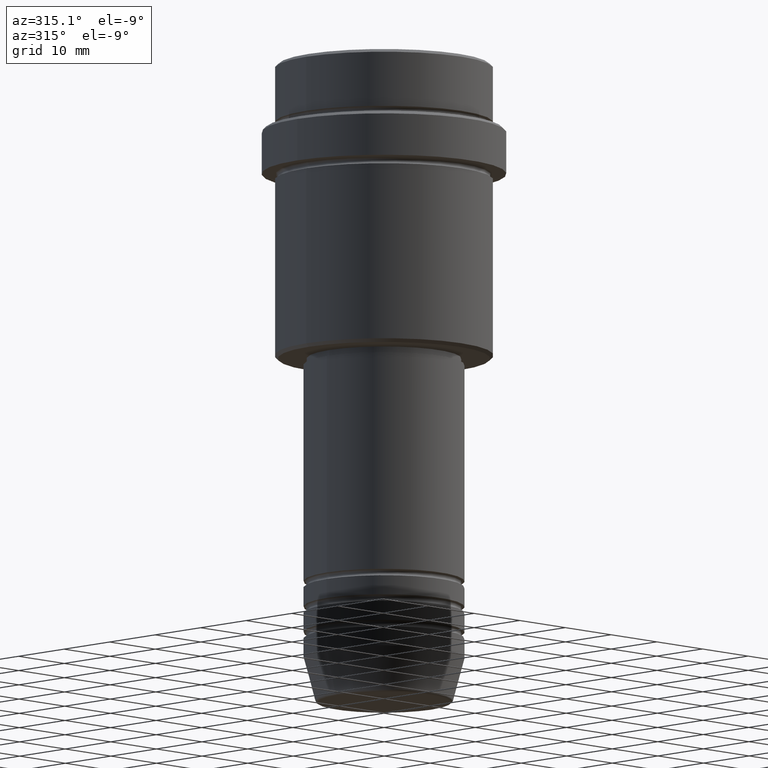
[diagram: clean part render]
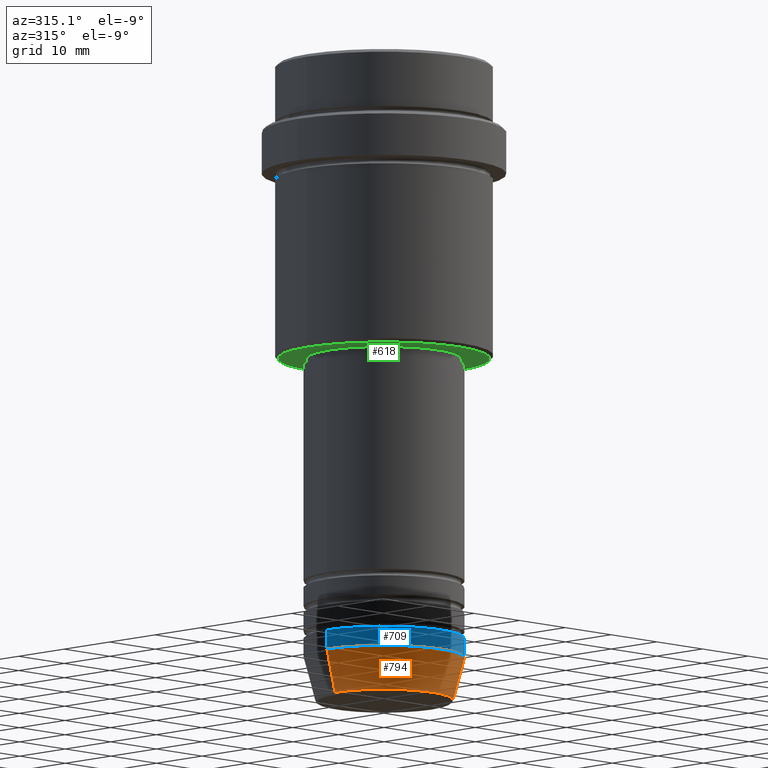
[diagram: same view with three faces highlighted in distinct colors, each labeled with its STEP entity id]
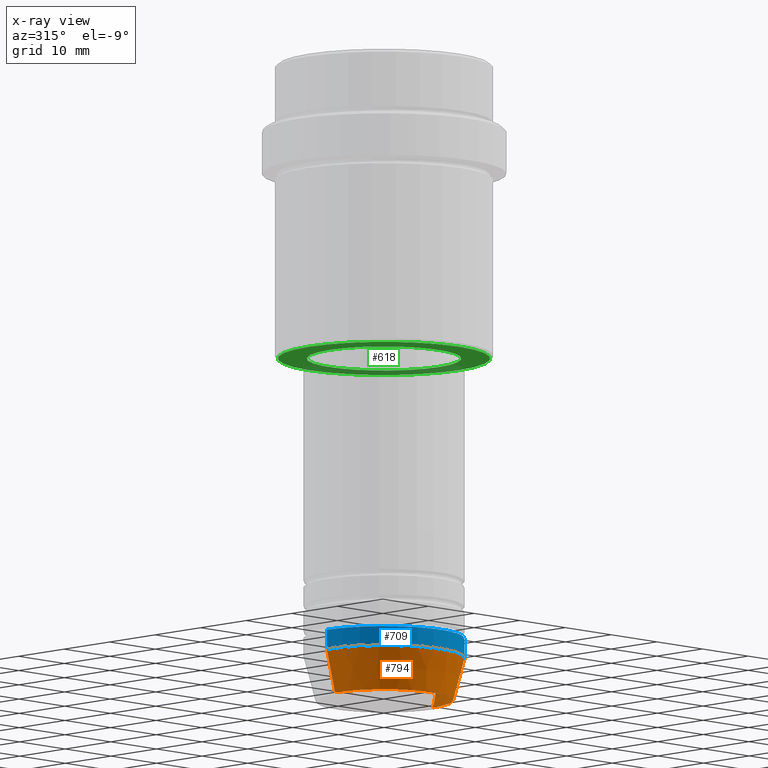
[diagram: x-ray of the same camera — body ghosted, the three highlighted faces saturated]
A machine part, auxiliary view with three faces highlighted in distinct colors.
The next image is the same camera in x-ray (body ghosted, the three faces saturated) — at least one of them is partly hidden behind the body in this view.
Their STEP definitions:

[orange] entity #794 — the highlighted conical surface has half-angle 15 deg.
#3 = VECTOR ( 'NONE', #413, 1000.000000000000000 ) ;
#12 = CARTESIAN_POINT ( 'NONE',  ( 0.000000000000000000, 0.000000000000000000, -93.00000000000000000 ) ) ;
#84 = LINE ( 'NONE', #403, #3 ) ;
#96 = CIRCLE ( 'NONE', #1006, 12.50000000000000000 ) ;
#125 = VERTEX_POINT ( 'NONE', #835 ) ;
#178 = DIRECTION ( 'NONE',  ( -0.000000000000000000, -0.000000000000000000, 1.000000000000000000 ) ) ;
#213 = EDGE_CURVE ( 'NONE', #760, #125, #534, .T. ) ;
#238 = VERTEX_POINT ( 'NONE', #1202 ) ;
#369 = FACE_OUTER_BOUND ( 'NONE', #453, .T. ) ;
#403 = CARTESIAN_POINT ( 'NONE',  ( -12.50000000000000000, 1.530808498934191521E-15, -93.00000000000000000 ) ) ;
#407 = ORIENTED_EDGE ( 'NONE', *, *, #995, .F. ) ;
#411 = LINE ( 'NONE', #965, #601 ) ;
#413 = DIRECTION ( 'NONE',  ( -0.2588190451025213501, 3.169619151431772337E-17, 0.9659258262890680902 ) ) ;
#427 = DIRECTION ( 'NONE',  ( -0.000000000000000000, -0.000000000000000000, 1.000000000000000000 ) ) ;
#444 = ORIENTED_EDGE ( 'NONE', *, *, #1060, .T. ) ;
#445 = DIRECTION ( 'NONE',  ( 1.000000000000000000, 0.000000000000000000, 0.000000000000000000 ) ) ;
#453 = EDGE_LOOP ( 'NONE', ( #1064, #802, #444, #407 ) ) ;
#463 = AXIS2_PLACEMENT_3D ( 'NONE', #12, #582, #1112 ) ;
#534 = CIRCLE ( 'NONE', #1075, 10.72365507213718416 ) ;
#582 = DIRECTION ( 'NONE',  ( -0.000000000000000000, -0.000000000000000000, 1.000000000000000000 ) ) ;
#595 = CARTESIAN_POINT ( 'NONE',  ( -12.50000000000000000, 1.530808498934191521E-15, -93.00000000000000000 ) ) ;
#601 = VECTOR ( 'NONE', #1398, 1000.000000000000000 ) ;
#603 = CARTESIAN_POINT ( 'NONE',  ( 0.000000000000000000, 0.000000000000000000, -93.00000000000000000 ) ) ;
#645 = CARTESIAN_POINT ( 'NONE',  ( 0.000000000000000000, 0.000000000000000000, -99.62940952255127058 ) ) ;
#723 = DIRECTION ( 'NONE',  ( 1.000000000000000000, 0.000000000000000000, 0.000000000000000000 ) ) ;
#760 = VERTEX_POINT ( 'NONE', #1003 ) ;
#794 = ADVANCED_FACE ( 'NONE', ( #369 ), #1257, .T. ) ;
#802 = ORIENTED_EDGE ( 'NONE', *, *, #213, .T. ) ;
#835 = CARTESIAN_POINT ( 'NONE',  ( 10.72365507213718416, 0.000000000000000000, -99.62940952255127058 ) ) ;
#887 = VERTEX_POINT ( 'NONE', #595 ) ;
#965 = CARTESIAN_POINT ( 'NONE',  ( 12.50000000000000000, 0.000000000000000000, -93.00000000000000000 ) ) ;
#995 = EDGE_CURVE ( 'NONE', #887, #238, #96, .T. ) ;
#1003 = CARTESIAN_POINT ( 'NONE',  ( -10.72365507213718416, 1.422038742429749727E-15, -99.62940952255127058 ) ) ;
#1006 = AXIS2_PLACEMENT_3D ( 'NONE', #603, #178, #723 ) ;
#1060 = EDGE_CURVE ( 'NONE', #125, #238, #411, .T. ) ;
#1064 = ORIENTED_EDGE ( 'NONE', *, *, #1334, .F. ) ;
#1075 = AXIS2_PLACEMENT_3D ( 'NONE', #645, #427, #445 ) ;
#1112 = DIRECTION ( 'NONE',  ( 1.000000000000000000, 0.000000000000000000, 0.000000000000000000 ) ) ;
#1202 = CARTESIAN_POINT ( 'NONE',  ( 12.50000000000000000, 0.000000000000000000, -93.00000000000000000 ) ) ;
#1257 = CONICAL_SURFACE ( 'NONE', #463, 12.50000000000000000, 0.2617993877991500740 ) ;
#1334 = EDGE_CURVE ( 'NONE', #760, #887, #84, .T. ) ;
#1398 = DIRECTION ( 'NONE',  ( 0.2588190451025213501, 0.000000000000000000, 0.9659258262890680902 ) ) ;

[blue] entity #709 — the highlighted cylindrical surface (partial cylindrical patch) has radius 12.5 mm, axis along (-0, -0, 1).
#51 = ORIENTED_EDGE ( 'NONE', *, *, #995, .T. ) ;
#90 = DIRECTION ( 'NONE',  ( -0.000000000000000000, -0.000000000000000000, 1.000000000000000000 ) ) ;
#96 = CIRCLE ( 'NONE', #1006, 12.50000000000000000 ) ;
#136 = EDGE_CURVE ( 'NONE', #238, #644, #1162, .T. ) ;
#178 = DIRECTION ( 'NONE',  ( -0.000000000000000000, -0.000000000000000000, 1.000000000000000000 ) ) ;
#198 = CARTESIAN_POINT ( 'NONE',  ( 12.50000000000000000, 0.000000000000000000, 0.000000000000000000 ) ) ;
#232 = DIRECTION ( 'NONE',  ( 1.000000000000000000, 0.000000000000000000, 0.000000000000000000 ) ) ;
#238 = VERTEX_POINT ( 'NONE', #1202 ) ;
#274 = DIRECTION ( 'NONE',  ( -0.000000000000000000, -0.000000000000000000, 1.000000000000000000 ) ) ;
#314 = VERTEX_POINT ( 'NONE', #1133 ) ;
#392 = LINE ( 'NONE', #1251, #881 ) ;
#521 = EDGE_CURVE ( 'NONE', #887, #314, #392, .T. ) ;
#595 = CARTESIAN_POINT ( 'NONE',  ( -12.50000000000000000, 1.530808498934191521E-15, -93.00000000000000000 ) ) ;
#603 = CARTESIAN_POINT ( 'NONE',  ( 0.000000000000000000, 0.000000000000000000, -93.00000000000000000 ) ) ;
#638 = EDGE_CURVE ( 'NONE', #314, #644, #795, .T. ) ;
#644 = VERTEX_POINT ( 'NONE', #1201 ) ;
#680 = ORIENTED_EDGE ( 'NONE', *, *, #638, .F. ) ;
#709 = ADVANCED_FACE ( 'NONE', ( #984 ), #1405, .T. ) ;
#723 = DIRECTION ( 'NONE',  ( 1.000000000000000000, 0.000000000000000000, 0.000000000000000000 ) ) ;
#754 = CARTESIAN_POINT ( 'NONE',  ( 0.000000000000000000, 0.000000000000000000, -90.00000000000000000 ) ) ;
#757 = DIRECTION ( 'NONE',  ( -0.000000000000000000, -0.000000000000000000, 1.000000000000000000 ) ) ;
#772 = ORIENTED_EDGE ( 'NONE', *, *, #521, .F. ) ;
#780 = DIRECTION ( 'NONE',  ( 1.000000000000000000, 0.000000000000000000, 0.000000000000000000 ) ) ;
#795 = CIRCLE ( 'NONE', #1153, 12.50000000000000000 ) ;
#844 = AXIS2_PLACEMENT_3D ( 'NONE', #1313, #757, #780 ) ;
#881 = VECTOR ( 'NONE', #274, 1000.000000000000000 ) ;
#887 = VERTEX_POINT ( 'NONE', #595 ) ;
#984 = FACE_OUTER_BOUND ( 'NONE', #1316, .T. ) ;
#995 = EDGE_CURVE ( 'NONE', #887, #238, #96, .T. ) ;
#1006 = AXIS2_PLACEMENT_3D ( 'NONE', #603, #178, #723 ) ;
#1052 = ORIENTED_EDGE ( 'NONE', *, *, #136, .T. ) ;
#1133 = CARTESIAN_POINT ( 'NONE',  ( -12.50000000000000000, 1.530808498934191521E-15, -90.00000000000000000 ) ) ;
#1153 = AXIS2_PLACEMENT_3D ( 'NONE', #754, #90, #232 ) ;
#1162 = LINE ( 'NONE', #198, #1260 ) ;
#1201 = CARTESIAN_POINT ( 'NONE',  ( 12.50000000000000000, 0.000000000000000000, -90.00000000000000000 ) ) ;
#1202 = CARTESIAN_POINT ( 'NONE',  ( 12.50000000000000000, 0.000000000000000000, -93.00000000000000000 ) ) ;
#1251 = CARTESIAN_POINT ( 'NONE',  ( -12.50000000000000000, 1.530808498934191521E-15, 0.000000000000000000 ) ) ;
#1258 = DIRECTION ( 'NONE',  ( -0.000000000000000000, -0.000000000000000000, 1.000000000000000000 ) ) ;
#1260 = VECTOR ( 'NONE', #1258, 1000.000000000000000 ) ;
#1313 = CARTESIAN_POINT ( 'NONE',  ( 0.000000000000000000, 0.000000000000000000, 0.000000000000000000 ) ) ;
#1316 = EDGE_LOOP ( 'NONE', ( #772, #51, #1052, #680 ) ) ;
#1405 = CYLINDRICAL_SURFACE ( 'NONE', #844, 12.50000000000000000 ) ;

[green] entity #618 — the highlighted planar face has unit normal (0, 0, -1).
#105 = EDGE_CURVE ( 'NONE', #170, #1121, #817, .T. ) ;
#170 = VERTEX_POINT ( 'NONE', #751 ) ;
#201 = CARTESIAN_POINT ( 'NONE',  ( 0.000000000000000000, 17.00000000000000000, -46.00000000000000000 ) ) ;
#305 = CARTESIAN_POINT ( 'NONE',  ( 0.000000000000000000, 0.000000000000000000, -46.00000000000000000 ) ) ;
#317 = PLANE ( 'NONE',  #583 ) ;
#416 = ORIENTED_EDGE ( 'NONE', *, *, #105, .T. ) ;
#417 = DIRECTION ( 'NONE',  ( 1.000000000000000000, 0.000000000000000000, 0.000000000000000000 ) ) ;
#441 = EDGE_LOOP ( 'NONE', ( #874, #1062 ) ) ;
#494 = VERTEX_POINT ( 'NONE', #855 ) ;
#503 = DIRECTION ( 'NONE',  ( 0.000000000000000000, 0.000000000000000000, -1.000000000000000000 ) ) ;
#506 = CARTESIAN_POINT ( 'NONE',  ( 0.000000000000000000, 0.000000000000000000, -46.00000000000000000 ) ) ;
#535 = ORIENTED_EDGE ( 'NONE', *, *, #895, .T. ) ;
#575 = AXIS2_PLACEMENT_3D ( 'NONE', #733, #927, #1028 ) ;
#580 = AXIS2_PLACEMENT_3D ( 'NONE', #962, #503, #758 ) ;
#583 = AXIS2_PLACEMENT_3D ( 'NONE', #201, #1295, #875 ) ;
#586 = CARTESIAN_POINT ( 'NONE',  ( -11.99999999999999289, 1.469576158976823158E-15, -46.00000000000000000 ) ) ;
#611 = DIRECTION ( 'NONE',  ( -1.000000000000000000, 0.000000000000000000, 0.000000000000000000 ) ) ;
#618 = ADVANCED_FACE ( 'NONE', ( #1185, #886 ), #317, .T. ) ;
#621 = DIRECTION ( 'NONE',  ( 0.000000000000000000, 0.000000000000000000, -1.000000000000000000 ) ) ;
#626 = CIRCLE ( 'NONE', #580, 16.50000000000000000 ) ;
#733 = CARTESIAN_POINT ( 'NONE',  ( 0.000000000000000000, 0.000000000000000000, -46.00000000000000000 ) ) ;
#751 = CARTESIAN_POINT ( 'NONE',  ( 11.99999999999999289, 0.000000000000000000, -46.00000000000000000 ) ) ;
#758 = DIRECTION ( 'NONE',  ( -1.000000000000000000, 0.000000000000000000, 0.000000000000000000 ) ) ;
#815 = AXIS2_PLACEMENT_3D ( 'NONE', #506, #621, #611 ) ;
#817 = CIRCLE ( 'NONE', #1100, 11.99999999999999289 ) ;
#839 = CIRCLE ( 'NONE', #815, 16.50000000000000000 ) ;
#853 = VERTEX_POINT ( 'NONE', #1014 ) ;
#855 = CARTESIAN_POINT ( 'NONE',  ( 16.50000000000000000, 0.000000000000000000, -46.00000000000000000 ) ) ;
#874 = ORIENTED_EDGE ( 'NONE', *, *, #929, .T. ) ;
#875 = DIRECTION ( 'NONE',  ( -1.000000000000000000, 0.000000000000000000, -0.000000000000000000 ) ) ;
#886 = FACE_BOUND ( 'NONE', #1275, .T. ) ;
#895 = EDGE_CURVE ( 'NONE', #1121, #170, #1233, .T. ) ;
#927 = DIRECTION ( 'NONE',  ( -0.000000000000000000, -0.000000000000000000, 1.000000000000000000 ) ) ;
#929 = EDGE_CURVE ( 'NONE', #494, #853, #839, .T. ) ;
#962 = CARTESIAN_POINT ( 'NONE',  ( 0.000000000000000000, 0.000000000000000000, -46.00000000000000000 ) ) ;
#1014 = CARTESIAN_POINT ( 'NONE',  ( -16.50000000000000000, 2.051283388571816887E-15, -46.00000000000000000 ) ) ;
#1028 = DIRECTION ( 'NONE',  ( 1.000000000000000000, 0.000000000000000000, 0.000000000000000000 ) ) ;
#1062 = ORIENTED_EDGE ( 'NONE', *, *, #1264, .T. ) ;
#1100 = AXIS2_PLACEMENT_3D ( 'NONE', #305, #1370, #417 ) ;
#1121 = VERTEX_POINT ( 'NONE', #586 ) ;
#1185 = FACE_OUTER_BOUND ( 'NONE', #441, .T. ) ;
#1233 = CIRCLE ( 'NONE', #575, 11.99999999999999289 ) ;
#1264 = EDGE_CURVE ( 'NONE', #853, #494, #626, .T. ) ;
#1275 = EDGE_LOOP ( 'NONE', ( #416, #535 ) ) ;
#1295 = DIRECTION ( 'NONE',  ( 0.000000000000000000, 0.000000000000000000, -1.000000000000000000 ) ) ;
#1370 = DIRECTION ( 'NONE',  ( -0.000000000000000000, -0.000000000000000000, 1.000000000000000000 ) ) ;